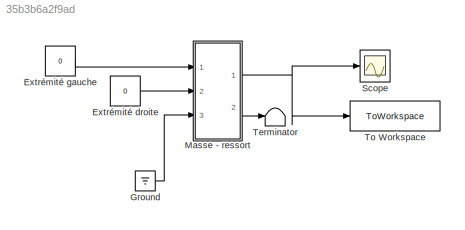
MODEL slx_35b3b6a2f9ad
KIND model
CONFIG AbsTol = auto
CONFIG EnableMultiTasking = off
CONFIG FixedStep = auto
CONFIG MaxStep = 1/2000
CONFIG MinStep = auto
CONFIG RelTol = 1e-3
CONFIG SampleTimeConstraint = Unconstrained
CONFIG Solver = VariableStepAuto
CONFIG SolverName = VariableStepAuto
CONFIG StartTime = 0.0
CONFIG StopTime = 10
BLOCK [Constant] Extrémité droite
  Value = 0
BLOCK [Constant] Extrémité gauche
  Value = 0
BLOCK [Ground] Ground
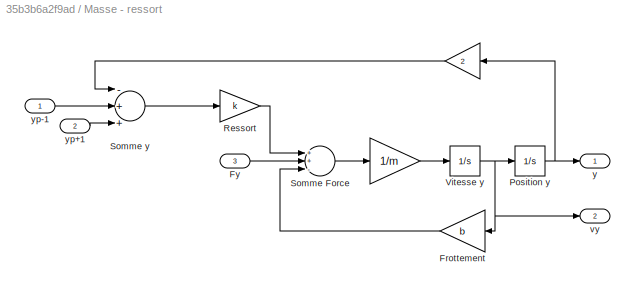
BLOCK [SubSystem] Masse - ressort
  Ports = [3, 2]
  RequestExecContextInheritance = off
BLOCK [Gain] Masse - ressort/ 
  Gain = 2
BLOCK [Gain] Masse - ressort/  
  Gain = 1/m
BLOCK [Gain] Masse - ressort/Frottement
  Gain = b
BLOCK [Inport] Masse - ressort/Fy
  IconDisplay = Port number
  Port = 3
BLOCK [Integrator] Masse - ressort/Position y
  InitialCondition = pos_ini
  Ports = [1, 1]
BLOCK [Gain] Masse - ressort/Ressort
  Gain = k
BLOCK [Sum] Masse - ressort/Somme Force
  Inputs = ++-
  Ports = [3, 1]
BLOCK [Sum] Masse - ressort/Somme y
  Inputs = -++
  Ports = [3, 1]
BLOCK [Integrator] Masse - ressort/Vitesse y
  InitialCondition = v_ini
  Ports = [1, 1]
BLOCK [Outport] Masse - ressort/vy
  IconDisplay = Port number
  Port = 2
  VectorParamsAs1DForOutWhenUnconnected = off
BLOCK [Outport] Masse - ressort/y
  IconDisplay = Port number
  VectorParamsAs1DForOutWhenUnconnected = off
BLOCK [Inport] Masse - ressort/yp+1
  IconDisplay = Port number
  Port = 2
BLOCK [Inport] Masse - ressort/yp-1
  IconDisplay = Port number
BLOCK [Scope] Scope
  Floating = off
  NumInputPorts = 1
  Ports = [1]
  ScopeSpecificationString = Simulink.scopes.TimeScopeBlockCfg('CurrentConfiguration', extmgr.ConfigurationSet(extmgr.Configuration('Core','General UI',true),extmgr.Configuration('Core','Source UI',true),extmgr.Configuration('Sources','WiredSimulink',true,'DataLoggingSaveFormat','StructureWithTime','DataLoggingLimitDataPoints',true,'DataLoggingDecimation','1','DataLoggingDecimateData',true),extmgr.Configuration('Visuals','Tim...<+1660ch>
BLOCK [Terminator] Terminator
BLOCK [ToWorkspace] To Workspace
  FixptAsFi = on
  MaxDataPoints = inf
  Ports = [1]
  SampleTime = -1
  SaveFormat = Timeseries
  VariableName = y7
LINE Extrémité droite:1 -> Masse - ressort:2
LINE Extrémité gauche:1 -> Masse - ressort:1
LINE Ground:1 -> Masse - ressort:3
LINE Masse - ressort/  :1 -> Masse - ressort/Vitesse y:1
LINE Masse - ressort/ :1 -> Masse - ressort/Somme y:1
LINE Masse - ressort/Frottement:1 -> Masse - ressort/Somme Force:3
LINE Masse - ressort/Fy:1 -> Masse - ressort/Somme Force:2
NET Masse - ressort/Position y:1 -> Masse - ressort/ :1, Masse - ressort/y:1
LINE Masse - ressort/Ressort:1 -> Masse - ressort/Somme Force:1
LINE Masse - ressort/Somme Force:1 -> Masse - ressort/  :1
LINE Masse - ressort/Somme y:1 -> Masse - ressort/Ressort:1
NET Masse - ressort/Vitesse y:1 -> Masse - ressort/Frottement:1, Masse - ressort/Position y:1, Masse - ressort/vy:1
LINE Masse - ressort/yp+1:1 -> Masse - ressort/Somme y:3
LINE Masse - ressort/yp-1:1 -> Masse - ressort/Somme y:2
NET Masse - ressort:1 -> Scope:1, To Workspace:1
LINE Masse - ressort:2 -> Terminator:1
note: NET lines group one-source signal fan-out (src -> all destinations, sorted); 1:1 wires keep LINE
